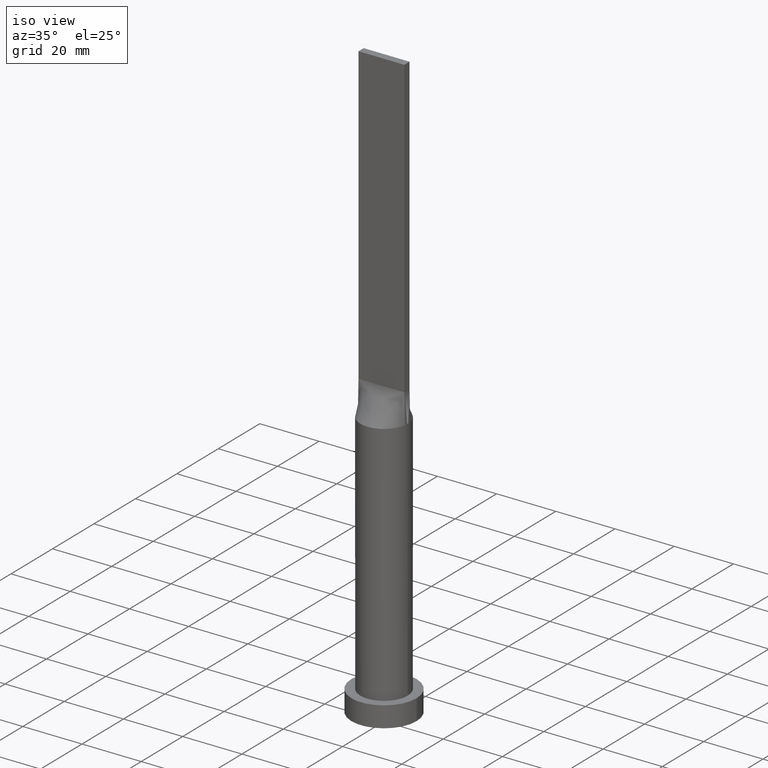
[diagram: clean part render]
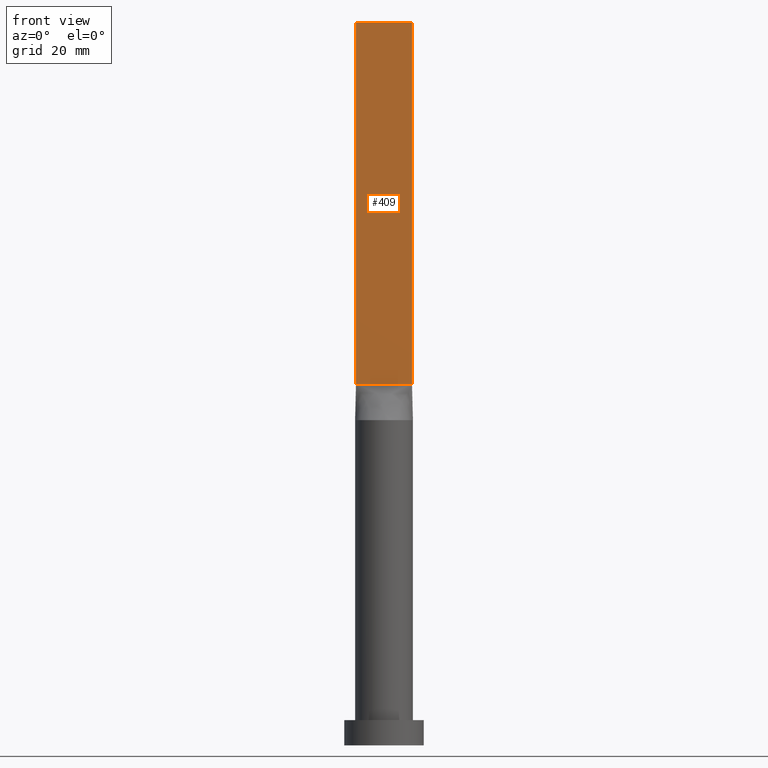
[diagram: tour spotlight — one face highlighted and labeled with its STEP entity id]
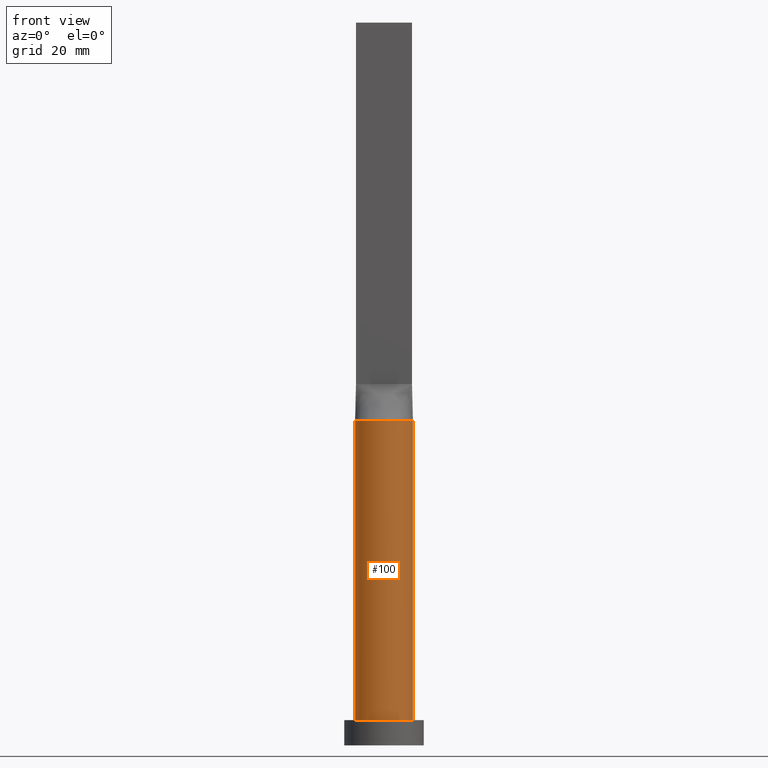
[diagram: tour spotlight — one face highlighted and labeled with its STEP entity id]
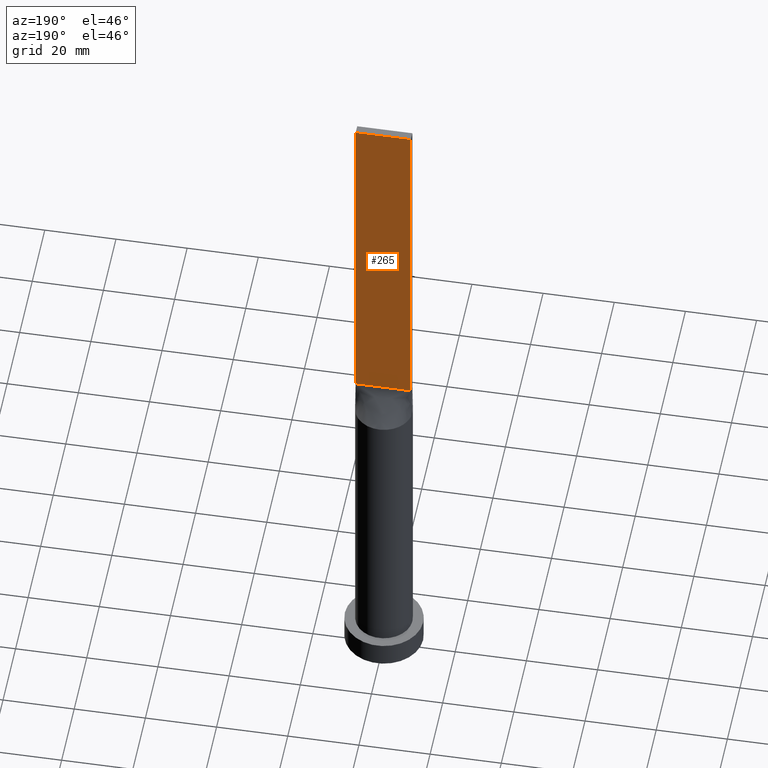
[diagram: tour spotlight — one face highlighted and labeled with its STEP entity id]
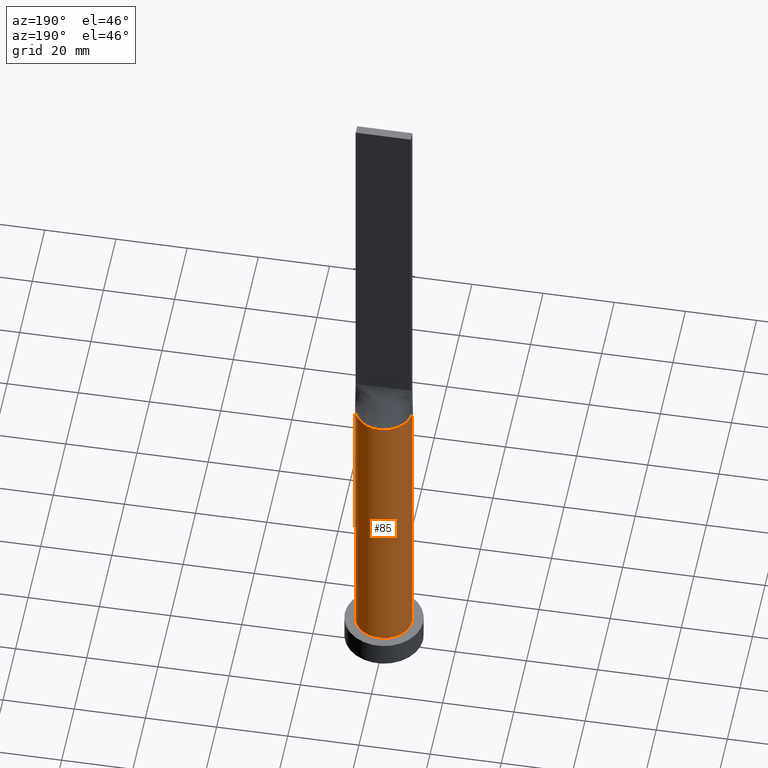
[diagram: tour spotlight — one face highlighted and labeled with its STEP entity id]
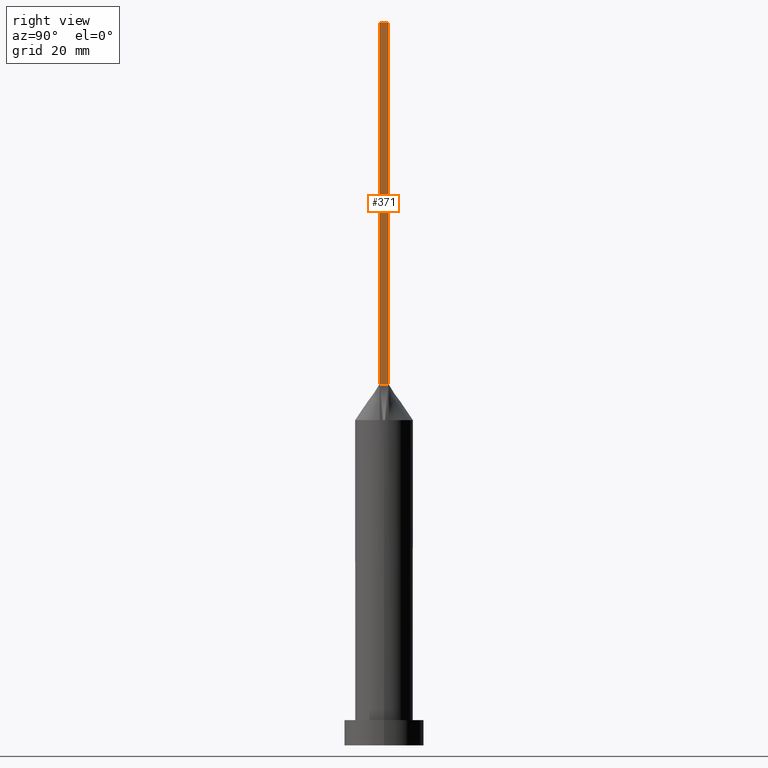
[diagram: tour spotlight — one face highlighted and labeled with its STEP entity id]
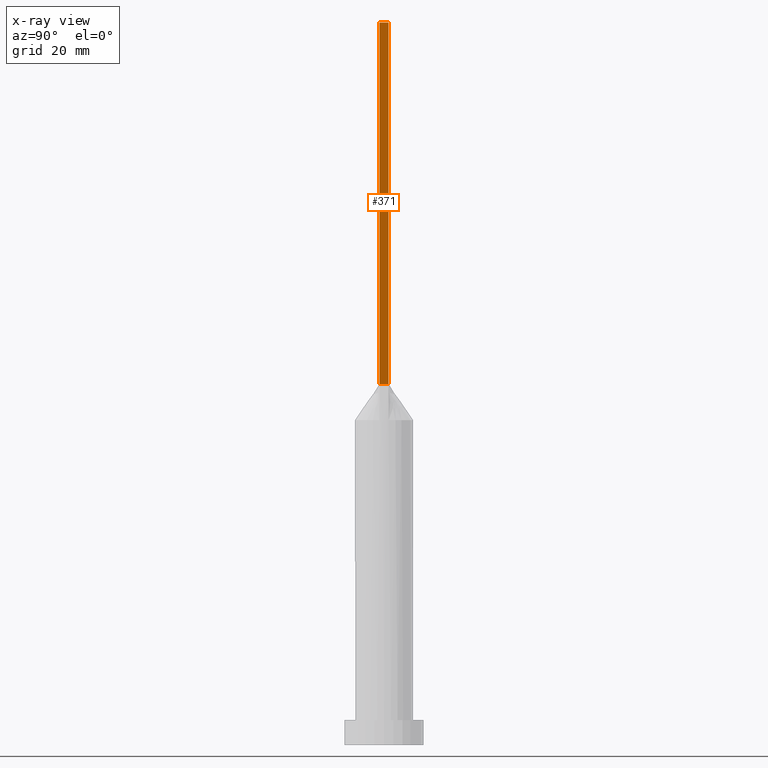
[diagram: x-ray of the same camera — body ghosted, this tour face saturated]
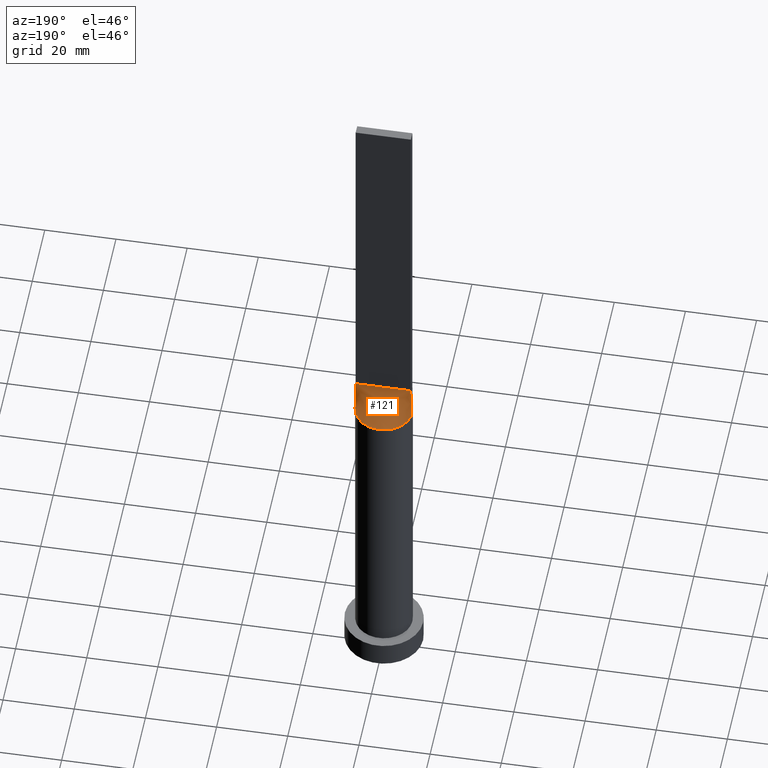
[diagram: tour spotlight — one face highlighted and labeled with its STEP entity id]
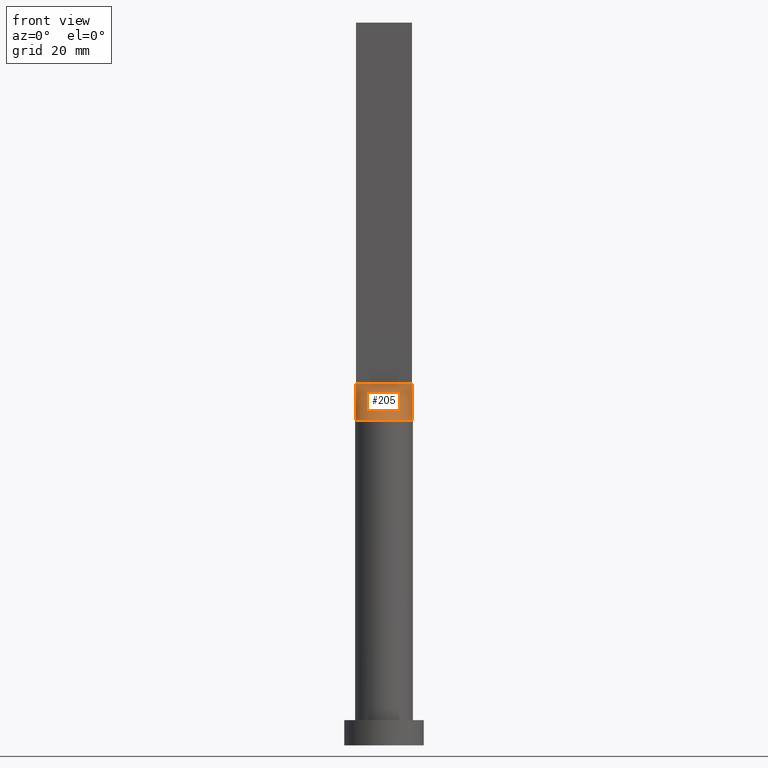
[diagram: tour spotlight — one face highlighted and labeled with its STEP entity id]
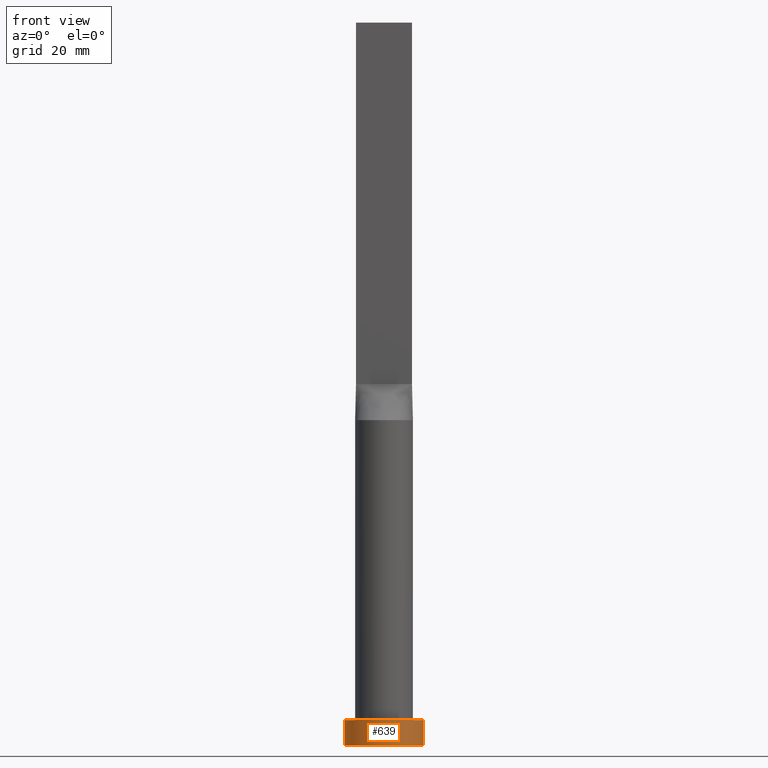
[diagram: tour spotlight — one face highlighted and labeled with its STEP entity id]
A machine part: a face-by-face anatomy tour. The part has 15 B-rep faces; the first image is the clean iso view, then the 8 largest visible faces are spotlighted one at a time (largest first), each with its STEP entity span.

Face 1 — front view, entity #409. In plain terms, the highlighted planar face has unit normal (0, 1, -0).
Definition (entity closure, byte-faithful):
#27 = DIRECTION ( 'NONE',  ( -0.000000000000000000, -0.000000000000000000, -1.000000000000000000 ) ) ;
#30 = CARTESIAN_POINT ( 'NONE',  ( -7.750000000000000000, -1.249999999999998890, 100.0000000000000000 ) ) ;
#34 = CARTESIAN_POINT ( 'NONE',  ( -7.750000000000000000, -1.249999999999998890, 200.0000000000000000 ) ) ;
#45 = DIRECTION ( 'NONE',  ( 1.000000000000000000, -5.595882180570345426E-17, 0.000000000000000000 ) ) ;
#56 = CARTESIAN_POINT ( 'NONE',  ( 7.750000000000000000, -1.249999999999999778, 200.0000000000000000 ) ) ;
#58 = ORIENTED_EDGE ( 'NONE', *, *, #362, .T. ) ;
#59 = DIRECTION ( 'NONE',  ( -0.000000000000000000, -0.000000000000000000, -1.000000000000000000 ) ) ;
#67 = AXIS2_PLACEMENT_3D ( 'NONE', #34, #579, #230 ) ;
#87 = VERTEX_POINT ( 'NONE', #289 ) ;
#119 = CARTESIAN_POINT ( 'NONE',  ( -7.750000000000000000, -1.249999999999998890, 200.0000000000000000 ) ) ;
#120 = CARTESIAN_POINT ( 'NONE',  ( 7.750000000000000000, -1.249999999999999778, 100.0000000000000000 ) ) ;
#130 = PLANE ( 'NONE',  #67 ) ;
#166 = VERTEX_POINT ( 'NONE', #120 ) ;
#179 = VECTOR ( 'NONE', #59, 1000.000000000000000 ) ;
#187 = ORIENTED_EDGE ( 'NONE', *, *, #341, .F. ) ;
#225 = ORIENTED_EDGE ( 'NONE', *, *, #469, .F. ) ;
#229 = ORIENTED_EDGE ( 'NONE', *, *, #590, .T. ) ;
#230 = DIRECTION ( 'NONE',  ( -1.000000000000000000, 5.595882180570345426E-17, 0.000000000000000000 ) ) ;
#234 = DIRECTION ( 'NONE',  ( 1.000000000000000000, -5.595882180570345426E-17, 0.000000000000000000 ) ) ;
#268 = EDGE_LOOP ( 'NONE', ( #229, #187, #225, #58 ) ) ;
#289 = CARTESIAN_POINT ( 'NONE',  ( -7.750000000000000000, -1.249999999999998890, 200.0000000000000000 ) ) ;
#291 = CARTESIAN_POINT ( 'NONE',  ( -7.750000000000000000, -1.249999999999998890, 100.0000000000000000 ) ) ;
#341 = EDGE_CURVE ( 'NONE', #374, #166, #512, .T. ) ;
#347 = VECTOR ( 'NONE', #234, 1000.000000000000000 ) ;
#362 = EDGE_CURVE ( 'NONE', #87, #483, #468, .T. ) ;
#372 = CARTESIAN_POINT ( 'NONE',  ( -7.750000000000000000, -1.249999999999998890, 200.0000000000000000 ) ) ;
#374 = VERTEX_POINT ( 'NONE', #428 ) ;
#409 = ADVANCED_FACE ( 'NONE', ( #481 ), #130, .F. ) ;
#428 = CARTESIAN_POINT ( 'NONE',  ( 7.750000000000000000, -1.249999999999999778, 200.0000000000000000 ) ) ;
#443 = VECTOR ( 'NONE', #27, 1000.000000000000000 ) ;
#468 = LINE ( 'NONE', #372, #443 ) ;
#469 = EDGE_CURVE ( 'NONE', #87, #374, #484, .T. ) ;
#481 = FACE_OUTER_BOUND ( 'NONE', #268, .T. ) ;
#483 = VERTEX_POINT ( 'NONE', #30 ) ;
#484 = LINE ( 'NONE', #119, #347 ) ;
#493 = VECTOR ( 'NONE', #45, 1000.000000000000000 ) ;
#512 = LINE ( 'NONE', #56, #179 ) ;
#579 = DIRECTION ( 'NONE',  ( 5.595882180570345426E-17, 1.000000000000000000, -0.000000000000000000 ) ) ;
#590 = EDGE_CURVE ( 'NONE', #483, #166, #635, .T. ) ;
#635 = LINE ( 'NONE', #291, #493 ) ;

Face 2 — front view, entity #100. In plain terms, the highlighted cylindrical surface (edge-blend (fillet) strip) has radius 8 mm, axis along (-0, -0, -1).
Definition (entity closure, byte-faithful):
#9 = VERTEX_POINT ( 'NONE', #170 ) ;
#20 = VECTOR ( 'NONE', #105, 1000.000000000000000 ) ;
#24 = ORIENTED_EDGE ( 'NONE', *, *, #575, .F. ) ;
#37 = ORIENTED_EDGE ( 'NONE', *, *, #633, .F. ) ;
#51 = EDGE_CURVE ( 'NONE', #195, #9, #570, .T. ) ;
#60 = EDGE_CURVE ( 'NONE', #134, #83, #65, .T. ) ;
#65 = CIRCLE ( 'NONE', #306, 8.000000000000000000 ) ;
#70 = AXIS2_PLACEMENT_3D ( 'NONE', #366, #114, #277 ) ;
#77 = EDGE_CURVE ( 'NONE', #295, #9, #241, .T. ) ;
#78 = AXIS2_PLACEMENT_3D ( 'NONE', #479, #581, #489 ) ;
#82 = DIRECTION ( 'NONE',  ( -0.000000000000000000, -0.000000000000000000, -1.000000000000000000 ) ) ;
#83 = VERTEX_POINT ( 'NONE', #583 ) ;
#86 = CARTESIAN_POINT ( 'NONE',  ( 0.000000000000000000, 0.000000000000000000, 90.00000000000001421 ) ) ;
#100 = ADVANCED_FACE ( 'NONE', ( #236 ), #292, .T. ) ;
#105 = DIRECTION ( 'NONE',  ( -0.000000000000000000, -0.000000000000000000, -1.000000000000000000 ) ) ;
#114 = DIRECTION ( 'NONE',  ( 0.000000000000000000, 0.000000000000000000, 1.000000000000000000 ) ) ;
#134 = VERTEX_POINT ( 'NONE', #611 ) ;
#138 = CARTESIAN_POINT ( 'NONE',  ( 8.000000000000000000, 9.797174393178825657E-16, 90.00000000000001421 ) ) ;
#144 = CARTESIAN_POINT ( 'NONE',  ( 0.000000000000000000, 0.000000000000000000, 90.00000000000001421 ) ) ;
#160 = CARTESIAN_POINT ( 'NONE',  ( 7.897952327758385849, -1.273863293446191536, 90.00000000000001421 ) ) ;
#170 = CARTESIAN_POINT ( 'NONE',  ( 8.000000000000000000, 9.797174393178825657E-16, 7.000000000000000000 ) ) ;
#186 = DIRECTION ( 'NONE',  ( 1.000000000000000000, 0.000000000000000000, 0.000000000000000000 ) ) ;
#190 = VECTOR ( 'NONE', #389, 1000.000000000000000 ) ;
#195 = VERTEX_POINT ( 'NONE', #339 ) ;
#208 = LINE ( 'NONE', #360, #20 ) ;
#213 = EDGE_LOOP ( 'NONE', ( #574, #24, #37, #337, #615, #370 ) ) ;
#222 = CARTESIAN_POINT ( 'NONE',  ( 7.999674421998661522, 1.953788361903730848E-15, 90.00000000000001421 ) ) ;
#236 = FACE_OUTER_BOUND ( 'NONE', #213, .T. ) ;
#241 = LINE ( 'NONE', #138, #190 ) ;
#271 = EDGE_CURVE ( 'NONE', #134, #195, #208, .T. ) ;
#277 = DIRECTION ( 'NONE',  ( 1.000000000000000000, 0.000000000000000000, 0.000000000000000000 ) ) ;
#292 = CYLINDRICAL_SURFACE ( 'NONE', #439, 8.000000000000000000 ) ;
#293 = DIRECTION ( 'NONE',  ( 1.000000000000000000, 1.776356839400250465E-15, 0.000000000000000000 ) ) ;
#295 = VERTEX_POINT ( 'NONE', #222 ) ;
#306 = AXIS2_PLACEMENT_3D ( 'NONE', #86, #396, #186 ) ;
#329 = VERTEX_POINT ( 'NONE', #160 ) ;
#337 = ORIENTED_EDGE ( 'NONE', *, *, #60, .F. ) ;
#339 = CARTESIAN_POINT ( 'NONE',  ( -8.000000000000000000, 0.000000000000000000, 7.000000000000000000 ) ) ;
#360 = CARTESIAN_POINT ( 'NONE',  ( -8.000000000000000000, 0.000000000000000000, 90.00000000000001421 ) ) ;
#366 = CARTESIAN_POINT ( 'NONE',  ( 0.000000000000000000, 0.000000000000000000, 90.00000000000001421 ) ) ;
#370 = ORIENTED_EDGE ( 'NONE', *, *, #51, .T. ) ;
#389 = DIRECTION ( 'NONE',  ( -0.000000000000000000, -0.000000000000000000, -1.000000000000000000 ) ) ;
#396 = DIRECTION ( 'NONE',  ( 0.000000000000000000, 0.000000000000000000, 1.000000000000000000 ) ) ;
#401 = CIRCLE ( 'NONE', #70, 8.000000000000000000 ) ;
#410 = AXIS2_PLACEMENT_3D ( 'NONE', #144, #442, #293 ) ;
#431 = CIRCLE ( 'NONE', #410, 8.000000000000000000 ) ;
#439 = AXIS2_PLACEMENT_3D ( 'NONE', #445, #82, #636 ) ;
#442 = DIRECTION ( 'NONE',  ( 0.000000000000000000, 0.000000000000000000, 1.000000000000000000 ) ) ;
#445 = CARTESIAN_POINT ( 'NONE',  ( 0.000000000000000000, 0.000000000000000000, 90.00000000000001421 ) ) ;
#479 = CARTESIAN_POINT ( 'NONE',  ( 0.000000000000000000, 0.000000000000000000, 7.000000000000000000 ) ) ;
#489 = DIRECTION ( 'NONE',  ( 1.000000000000000000, 0.000000000000000000, 0.000000000000000000 ) ) ;
#570 = CIRCLE ( 'NONE', #78, 8.000000000000000000 ) ;
#574 = ORIENTED_EDGE ( 'NONE', *, *, #77, .F. ) ;
#575 = EDGE_CURVE ( 'NONE', #329, #295, #431, .T. ) ;
#581 = DIRECTION ( 'NONE',  ( 0.000000000000000000, 0.000000000000000000, 1.000000000000000000 ) ) ;
#583 = CARTESIAN_POINT ( 'NONE',  ( -7.897940634034629426, -1.273861398824698732, 90.00000000000001421 ) ) ;
#611 = CARTESIAN_POINT ( 'NONE',  ( -7.999674421998661522, -1.996358676257538358E-15, 90.00000000000001421 ) ) ;
#615 = ORIENTED_EDGE ( 'NONE', *, *, #271, .T. ) ;
#633 = EDGE_CURVE ( 'NONE', #83, #329, #401, .T. ) ;
#636 = DIRECTION ( 'NONE',  ( -1.000000000000000000, 0.000000000000000000, 0.000000000000000000 ) ) ;

Face 3 — auxiliary view, entity #265. In plain terms, the highlighted planar face has unit normal (0, -1, 0).
Definition (entity closure, byte-faithful):
#7 = CARTESIAN_POINT ( 'NONE',  ( -7.750000000000000000, 1.250000000000000222, 100.0000000000000000 ) ) ;
#31 = VECTOR ( 'NONE', #527, 1000.000000000000000 ) ;
#38 = VECTOR ( 'NONE', #367, 1000.000000000000000 ) ;
#48 = ORIENTED_EDGE ( 'NONE', *, *, #510, .F. ) ;
#111 = FACE_OUTER_BOUND ( 'NONE', #403, .T. ) ;
#115 = LINE ( 'NONE', #7, #38 ) ;
#145 = ORIENTED_EDGE ( 'NONE', *, *, #613, .T. ) ;
#152 = CARTESIAN_POINT ( 'NONE',  ( 7.750000000000000000, 1.250000000000000222, 200.0000000000000000 ) ) ;
#156 = VECTOR ( 'NONE', #478, 1000.000000000000000 ) ;
#226 = EDGE_CURVE ( 'NONE', #416, #250, #115, .T. ) ;
#250 = VERTEX_POINT ( 'NONE', #595 ) ;
#265 = ADVANCED_FACE ( 'NONE', ( #111 ), #597, .F. ) ;
#282 = ORIENTED_EDGE ( 'NONE', *, *, #488, .F. ) ;
#307 = AXIS2_PLACEMENT_3D ( 'NONE', #152, #356, #556 ) ;
#312 = VERTEX_POINT ( 'NONE', #375 ) ;
#319 = CARTESIAN_POINT ( 'NONE',  ( 7.750000000000000000, 1.250000000000000222, 200.0000000000000000 ) ) ;
#350 = CARTESIAN_POINT ( 'NONE',  ( 7.750000000000000000, 1.250000000000000222, 200.0000000000000000 ) ) ;
#356 = DIRECTION ( 'NONE',  ( 0.000000000000000000, -1.000000000000000000, 0.000000000000000000 ) ) ;
#367 = DIRECTION ( 'NONE',  ( -1.000000000000000000, -0.000000000000000000, -0.000000000000000000 ) ) ;
#375 = CARTESIAN_POINT ( 'NONE',  ( 7.750000000000000000, 1.250000000000000222, 200.0000000000000000 ) ) ;
#379 = ORIENTED_EDGE ( 'NONE', *, *, #226, .T. ) ;
#403 = EDGE_LOOP ( 'NONE', ( #379, #48, #282, #145 ) ) ;
#404 = DIRECTION ( 'NONE',  ( -0.000000000000000000, -0.000000000000000000, -1.000000000000000000 ) ) ;
#416 = VERTEX_POINT ( 'NONE', #625 ) ;
#427 = LINE ( 'NONE', #319, #31 ) ;
#478 = DIRECTION ( 'NONE',  ( -0.000000000000000000, -0.000000000000000000, -1.000000000000000000 ) ) ;
#488 = EDGE_CURVE ( 'NONE', #312, #549, #427, .T. ) ;
#510 = EDGE_CURVE ( 'NONE', #549, #250, #621, .T. ) ;
#527 = DIRECTION ( 'NONE',  ( -1.000000000000000000, 0.000000000000000000, 0.000000000000000000 ) ) ;
#546 = CARTESIAN_POINT ( 'NONE',  ( -7.750000000000000000, 1.250000000000000222, 200.0000000000000000 ) ) ;
#549 = VERTEX_POINT ( 'NONE', #546 ) ;
#556 = DIRECTION ( 'NONE',  ( 0.000000000000000000, -0.000000000000000000, -1.000000000000000000 ) ) ;
#577 = CARTESIAN_POINT ( 'NONE',  ( -7.750000000000000000, 1.250000000000000222, 200.0000000000000000 ) ) ;
#585 = VECTOR ( 'NONE', #404, 1000.000000000000000 ) ;
#586 = LINE ( 'NONE', #350, #585 ) ;
#595 = CARTESIAN_POINT ( 'NONE',  ( -7.750000000000000000, 1.250000000000000222, 100.0000000000000000 ) ) ;
#597 = PLANE ( 'NONE',  #307 ) ;
#613 = EDGE_CURVE ( 'NONE', #312, #416, #586, .T. ) ;
#621 = LINE ( 'NONE', #577, #156 ) ;
#625 = CARTESIAN_POINT ( 'NONE',  ( 7.750000000000000000, 1.250000000000000222, 100.0000000000000000 ) ) ;

Face 4 — auxiliary view, entity #85. In plain terms, the highlighted cylindrical surface (edge-blend (fillet) strip) has radius 8 mm, axis along (-0, -0, -1).
Definition (entity closure, byte-faithful):
#1 = CARTESIAN_POINT ( 'NONE',  ( 7.597511974649646227, 2.632154125590748350, 89.99999999999998579 ) ) ;
#9 = VERTEX_POINT ( 'NONE', #170 ) ;
#13 = EDGE_LOOP ( 'NONE', ( #506, #97, #426, #122, #17, #562 ) ) ;
#17 = ORIENTED_EDGE ( 'NONE', *, *, #529, .F. ) ;
#20 = VECTOR ( 'NONE', #105, 1000.000000000000000 ) ;
#64 = DIRECTION ( 'NONE',  ( 0.000000000000000000, 0.000000000000000000, 1.000000000000000000 ) ) ;
#71 = CARTESIAN_POINT ( 'NONE',  ( 2.762781956618984847, 7.527418670504289366, 90.00000000000004263 ) ) ;
#74 = CARTESIAN_POINT ( 'NONE',  ( -2.232993174580875539, 7.702525839322460044, 90.00000000000001421 ) ) ;
#77 = EDGE_CURVE ( 'NONE', #295, #9, #241, .T. ) ;
#85 = ADVANCED_FACE ( 'NONE', ( #189 ), #89, .T. ) ;
#89 = CYLINDRICAL_SURFACE ( 'NONE', #99, 8.000000000000000000 ) ;
#94 = CARTESIAN_POINT ( 'NONE',  ( 7.897939137640443974, 1.273861156091724789, 90.00000000000001421 ) ) ;
#97 = ORIENTED_EDGE ( 'NONE', *, *, #77, .T. ) ;
#99 = AXIS2_PLACEMENT_3D ( 'NONE', #395, #344, #542 ) ;
#105 = DIRECTION ( 'NONE',  ( -0.000000000000000000, -0.000000000000000000, -1.000000000000000000 ) ) ;
#117 = CARTESIAN_POINT ( 'NONE',  ( -7.597511974649647115, 2.632154125590751903, 90.00000000000001421 ) ) ;
#122 = ORIENTED_EDGE ( 'NONE', *, *, #271, .F. ) ;
#129 = CARTESIAN_POINT ( 'NONE',  ( -4.217034177653714799, 6.817775467282660706, 90.00000000000002842 ) ) ;
#134 = VERTEX_POINT ( 'NONE', #611 ) ;
#135 = CARTESIAN_POINT ( 'NONE',  ( -6.389139692789916225, 4.834731051311460526, 90.00000000000002842 ) ) ;
#138 = CARTESIAN_POINT ( 'NONE',  ( 8.000000000000000000, 9.797174393178825657E-16, 90.00000000000001421 ) ) ;
#150 = CARTESIAN_POINT ( 'NONE',  ( 6.389139692789920666, 4.834731051311459638, 90.00000000000004263 ) ) ;
#153 = AXIS2_PLACEMENT_3D ( 'NONE', #321, #64, #270 ) ;
#157 = AXIS2_PLACEMENT_3D ( 'NONE', #535, #227, #436 ) ;
#162 = EDGE_CURVE ( 'NONE', #9, #195, #525, .T. ) ;
#170 = CARTESIAN_POINT ( 'NONE',  ( 8.000000000000000000, 9.797174393178825657E-16, 7.000000000000000000 ) ) ;
#174 = CARTESIAN_POINT ( 'NONE',  ( -7.793128424795161102, 1.923622864214273198, 90.00000000000001421 ) ) ;
#178 = CARTESIAN_POINT ( 'NONE',  ( 3.754841939107309567, 7.084924699190306541, 90.00000000000002842 ) ) ;
#183 = CARTESIAN_POINT ( 'NONE',  ( -6.100409024666552327, 5.197691498289451317, 90.00000000000001421 ) ) ;
#189 = FACE_OUTER_BOUND ( 'NONE', #13, .T. ) ;
#190 = VECTOR ( 'NONE', #389, 1000.000000000000000 ) ;
#193 = DIRECTION ( 'NONE',  ( 1.000000000000000000, 0.000000000000000000, 0.000000000000000000 ) ) ;
#195 = VERTEX_POINT ( 'NONE', #339 ) ;
#204 = VERTEX_POINT ( 'NONE', #384 ) ;
#208 = LINE ( 'NONE', #360, #20 ) ;
#222 = CARTESIAN_POINT ( 'NONE',  ( 7.999674421998661522, 1.953788361903730848E-15, 90.00000000000001421 ) ) ;
#227 = DIRECTION ( 'NONE',  ( 0.000000000000000000, 0.000000000000000000, 1.000000000000000000 ) ) ;
#233 = CARTESIAN_POINT ( 'NONE',  ( 0.5677556330368851434, 7.999999999999998224, 90.00000000000001421 ) ) ;
#241 = LINE ( 'NONE', #138, #190 ) ;
#243 = CIRCLE ( 'NONE', #157, 8.000000000000000000 ) ;
#251 = CARTESIAN_POINT ( 'NONE',  ( 7.088837466865212988, 3.729743859143727303, 89.99999999999998579 ) ) ;
#267 = CARTESIAN_POINT ( 'NONE',  ( -7.088837466865208548, 3.729743859143727747, 89.99999999999998579 ) ) ;
#270 = DIRECTION ( 'NONE',  ( 1.000000000000000000, 0.000000000000000000, 0.000000000000000000 ) ) ;
#271 = EDGE_CURVE ( 'NONE', #134, #195, #208, .T. ) ;
#279 = CARTESIAN_POINT ( 'NONE',  ( -3.754841939107308235, 7.084924699190308317, 90.00000000000004263 ) ) ;
#287 = CARTESIAN_POINT ( 'NONE',  ( 5.056714967162550423, 6.220536417275850383, 90.00000000000001421 ) ) ;
#295 = VERTEX_POINT ( 'NONE', #222 ) ;
#296 = CARTESIAN_POINT ( 'NONE',  ( 7.793128424795161990, 1.923622864214272088, 89.99999999999998579 ) ) ;
#321 = CARTESIAN_POINT ( 'NONE',  ( 0.000000000000000000, 0.000000000000000000, 7.000000000000000000 ) ) ;
#322 = CARTESIAN_POINT ( 'NONE',  ( -7.897950825069725234, 1.273863048877633020, 90.00000000000001421 ) ) ;
#324 = CIRCLE ( 'NONE', #558, 8.000000000000000000 ) ;
#330 = CARTESIAN_POINT ( 'NONE',  ( 2.232993174580878204, 7.702525839322459156, 90.00000000000002842 ) ) ;
#333 = CARTESIAN_POINT ( 'NONE',  ( -5.056714967162549534, 6.220536417275851271, 90.00000000000002842 ) ) ;
#339 = CARTESIAN_POINT ( 'NONE',  ( -8.000000000000000000, 0.000000000000000000, 7.000000000000000000 ) ) ;
#340 = CARTESIAN_POINT ( 'NONE',  ( 6.100409024666552327, 5.197691498289451317, 90.00000000000001421 ) ) ;
#344 = DIRECTION ( 'NONE',  ( -0.000000000000000000, -0.000000000000000000, -1.000000000000000000 ) ) ;
#360 = CARTESIAN_POINT ( 'NONE',  ( -8.000000000000000000, 0.000000000000000000, 90.00000000000001421 ) ) ;
#384 = CARTESIAN_POINT ( 'NONE',  ( -7.897950825069725234, 1.273863048877633020, 90.00000000000001421 ) ) ;
#389 = DIRECTION ( 'NONE',  ( -0.000000000000000000, -0.000000000000000000, -1.000000000000000000 ) ) ;
#395 = CARTESIAN_POINT ( 'NONE',  ( 0.000000000000000000, 0.000000000000000000, 90.00000000000001421 ) ) ;
#426 = ORIENTED_EDGE ( 'NONE', *, *, #162, .T. ) ;
#433 = CARTESIAN_POINT ( 'NONE',  ( -5.434261125067506804, 5.890653037160105576, 90.00000000000001421 ) ) ;
#436 = DIRECTION ( 'NONE',  ( 1.000000000000000000, 0.000000000000000000, 0.000000000000000000 ) ) ;
#448 = DIRECTION ( 'NONE',  ( 0.000000000000000000, 0.000000000000000000, 1.000000000000000000 ) ) ;
#480 = CARTESIAN_POINT ( 'NONE',  ( 1.135368687448996328, 7.938897956688654389, 90.00000000000001421 ) ) ;
#491 = CARTESIAN_POINT ( 'NONE',  ( 4.217034177653714799, 6.817775467282659818, 89.99999999999998579 ) ) ;
#506 = ORIENTED_EDGE ( 'NONE', *, *, #553, .F. ) ;
#522 = B_SPLINE_CURVE_WITH_KNOTS ( 'NONE', 3,
 ( #94, #296, #1, #251, #591, #150, #340, #538, #287, #491, #178, #71, #330, #480, #233, #573, #576, #74, #620, #279, #129, #333, #433, #183, #135, #607, #267, #117, #174, #322 ),
 .UNSPECIFIED., .F., .F.,
 ( 4, 2, 2, 2, 2, 2, 2, 2, 2, 2, 2, 2, 2, 2, 4 ),
 ( 0.000000000000000000, 0.1250000000000000000, 0.1875000000000000000, 0.2500000000000000000, 0.3125000000000000000, 0.3750000000000000000, 0.4375000000000000000, 0.5000000000000000000, 0.5625000000000000000, 0.6250000000000000000, 0.6875000000000000000, 0.7500000000000000000, 0.8125000000000000000, 0.8750000000000000000, 1.000000000000000000 ),
 .UNSPECIFIED. ) ;
#525 = CIRCLE ( 'NONE', #153, 8.000000000000000000 ) ;
#529 = EDGE_CURVE ( 'NONE', #204, #134, #243, .T. ) ;
#535 = CARTESIAN_POINT ( 'NONE',  ( 0.000000000000000000, 0.000000000000000000, 90.00000000000001421 ) ) ;
#537 = VERTEX_POINT ( 'NONE', #616 ) ;
#538 = CARTESIAN_POINT ( 'NONE',  ( 5.434261125067508580, 5.890653037160103800, 90.00000000000001421 ) ) ;
#542 = DIRECTION ( 'NONE',  ( -1.000000000000000000, 0.000000000000000000, 0.000000000000000000 ) ) ;
#553 = EDGE_CURVE ( 'NONE', #295, #537, #324, .T. ) ;
#558 = AXIS2_PLACEMENT_3D ( 'NONE', #584, #448, #193 ) ;
#562 = ORIENTED_EDGE ( 'NONE', *, *, #618, .F. ) ;
#573 = CARTESIAN_POINT ( 'NONE',  ( -0.5677556330368852544, 7.999999999999998224, 90.00000000000002842 ) ) ;
#576 = CARTESIAN_POINT ( 'NONE',  ( -1.135368687448994329, 7.938897956688654389, 90.00000000000001421 ) ) ;
#584 = CARTESIAN_POINT ( 'NONE',  ( 0.000000000000000000, 0.000000000000000000, 90.00000000000001421 ) ) ;
#591 = CARTESIAN_POINT ( 'NONE',  ( 6.883287261198673512, 4.100742229440780484, 90.00000000000004263 ) ) ;
#607 = CARTESIAN_POINT ( 'NONE',  ( -6.883287261198669960, 4.100742229440782260, 90.00000000000002842 ) ) ;
#611 = CARTESIAN_POINT ( 'NONE',  ( -7.999674421998661522, -1.996358676257538358E-15, 90.00000000000001421 ) ) ;
#616 = CARTESIAN_POINT ( 'NONE',  ( 7.897939137640443974, 1.273861156091724789, 90.00000000000001421 ) ) ;
#618 = EDGE_CURVE ( 'NONE', #537, #204, #522, .T. ) ;
#620 = CARTESIAN_POINT ( 'NONE',  ( -2.762781956618985291, 7.527418670504290255, 90.00000000000002842 ) ) ;

Face 5 — right view, entity #371. An x-ray twin of the same camera follows (body ghosted, this face saturated) — the face is partly hidden behind the body. In plain terms, the highlighted planar face has unit normal (-1, 0, 0).
Definition (entity closure, byte-faithful):
#4 = ORIENTED_EDGE ( 'NONE', *, *, #140, .T. ) ;
#11 = ORIENTED_EDGE ( 'NONE', *, *, #341, .T. ) ;
#56 = CARTESIAN_POINT ( 'NONE',  ( 7.750000000000000000, -1.249999999999999778, 200.0000000000000000 ) ) ;
#59 = DIRECTION ( 'NONE',  ( -0.000000000000000000, -0.000000000000000000, -1.000000000000000000 ) ) ;
#69 = DIRECTION ( 'NONE',  ( -0.000000000000000000, 1.000000000000000000, -0.000000000000000000 ) ) ;
#120 = CARTESIAN_POINT ( 'NONE',  ( 7.750000000000000000, -1.249999999999999778, 100.0000000000000000 ) ) ;
#124 = DIRECTION ( 'NONE',  ( -1.000000000000000000, 0.000000000000000000, 0.000000000000000000 ) ) ;
#128 = ORIENTED_EDGE ( 'NONE', *, *, #613, .F. ) ;
#140 = EDGE_CURVE ( 'NONE', #166, #416, #177, .T. ) ;
#166 = VERTEX_POINT ( 'NONE', #120 ) ;
#177 = LINE ( 'NONE', #373, #492 ) ;
#179 = VECTOR ( 'NONE', #59, 1000.000000000000000 ) ;
#184 = PLANE ( 'NONE',  #191 ) ;
#191 = AXIS2_PLACEMENT_3D ( 'NONE', #475, #124, #486 ) ;
#237 = LINE ( 'NONE', #386, #326 ) ;
#312 = VERTEX_POINT ( 'NONE', #375 ) ;
#326 = VECTOR ( 'NONE', #392, 1000.000000000000000 ) ;
#335 = FACE_OUTER_BOUND ( 'NONE', #471, .T. ) ;
#341 = EDGE_CURVE ( 'NONE', #374, #166, #512, .T. ) ;
#350 = CARTESIAN_POINT ( 'NONE',  ( 7.750000000000000000, 1.250000000000000222, 200.0000000000000000 ) ) ;
#371 = ADVANCED_FACE ( 'NONE', ( #335 ), #184, .F. ) ;
#373 = CARTESIAN_POINT ( 'NONE',  ( 7.750000000000000000, 1.250000000000000222, 100.0000000000000000 ) ) ;
#374 = VERTEX_POINT ( 'NONE', #428 ) ;
#375 = CARTESIAN_POINT ( 'NONE',  ( 7.750000000000000000, 1.250000000000000222, 200.0000000000000000 ) ) ;
#386 = CARTESIAN_POINT ( 'NONE',  ( 7.750000000000000000, -1.249999999999999778, 200.0000000000000000 ) ) ;
#392 = DIRECTION ( 'NONE',  ( 0.000000000000000000, 1.000000000000000000, 0.000000000000000000 ) ) ;
#404 = DIRECTION ( 'NONE',  ( -0.000000000000000000, -0.000000000000000000, -1.000000000000000000 ) ) ;
#416 = VERTEX_POINT ( 'NONE', #625 ) ;
#428 = CARTESIAN_POINT ( 'NONE',  ( 7.750000000000000000, -1.249999999999999778, 200.0000000000000000 ) ) ;
#457 = EDGE_CURVE ( 'NONE', #374, #312, #237, .T. ) ;
#471 = EDGE_LOOP ( 'NONE', ( #4, #128, #623, #11 ) ) ;
#475 = CARTESIAN_POINT ( 'NONE',  ( 7.750000000000000000, -1.249999999999999778, 200.0000000000000000 ) ) ;
#486 = DIRECTION ( 'NONE',  ( 0.000000000000000000, 0.000000000000000000, 1.000000000000000000 ) ) ;
#492 = VECTOR ( 'NONE', #69, 1000.000000000000000 ) ;
#512 = LINE ( 'NONE', #56, #179 ) ;
#585 = VECTOR ( 'NONE', #404, 1000.000000000000000 ) ;
#586 = LINE ( 'NONE', #350, #585 ) ;
#613 = EDGE_CURVE ( 'NONE', #312, #416, #586, .T. ) ;
#623 = ORIENTED_EDGE ( 'NONE', *, *, #457, .F. ) ;
#625 = CARTESIAN_POINT ( 'NONE',  ( 7.750000000000000000, 1.250000000000000222, 100.0000000000000000 ) ) ;

Face 6 — auxiliary view, entity #121. In plain terms, the highlighted face is a freeform B-spline surface patch.
Definition (entity closure, byte-faithful):
#1 = CARTESIAN_POINT ( 'NONE',  ( 7.597511974649646227, 2.632154125590748350, 89.99999999999998579 ) ) ;
#3 = CARTESIAN_POINT ( 'NONE',  ( -0.3229166666666729579, 1.250000000000000444, 100.0000000000000000 ) ) ;
#6 = CARTESIAN_POINT ( 'NONE',  ( -2.232993174580875539, 7.702525839322460044, 90.00000000000001421 ) ) ;
#7 = CARTESIAN_POINT ( 'NONE',  ( -7.750000000000000000, 1.250000000000000222, 100.0000000000000000 ) ) ;
#10 = CARTESIAN_POINT ( 'NONE',  ( 2.260416666666660745, 1.250000000000000222, 100.0000000000000000 ) ) ;
#16 = CARTESIAN_POINT ( 'NONE',  ( -6.883287261198669960, 4.100742229440782260, 90.00000000000002842 ) ) ;
#38 = VECTOR ( 'NONE', #367, 1000.000000000000000 ) ;
#43 = FACE_OUTER_BOUND ( 'NONE', #390, .T. ) ;
#44 = ORIENTED_EDGE ( 'NONE', *, *, #226, .F. ) ;
#47 = CARTESIAN_POINT ( 'NONE',  ( 1.291666666666660523, 1.250000000000000222, 100.0000000000000000 ) ) ;
#49 = CARTESIAN_POINT ( 'NONE',  ( -1.135368687448994329, 7.938897956688654389, 90.00000000000001421 ) ) ;
#71 = CARTESIAN_POINT ( 'NONE',  ( 2.762781956618984847, 7.527418670504289366, 90.00000000000004263 ) ) ;
#74 = CARTESIAN_POINT ( 'NONE',  ( -2.232993174580875539, 7.702525839322460044, 90.00000000000001421 ) ) ;
#92 = CARTESIAN_POINT ( 'NONE',  ( -3.229166666666672736, 1.250000000000000222, 100.0000000000000284 ) ) ;
#94 = CARTESIAN_POINT ( 'NONE',  ( 7.897939137640443974, 1.273861156091724789, 90.00000000000001421 ) ) ;
#96 = CARTESIAN_POINT ( 'NONE',  ( 4.217034177653714799, 6.817775467282659818, 89.99999999999998579 ) ) ;
#104 = CARTESIAN_POINT ( 'NONE',  ( -3.754841939107308235, 7.084924699190308317, 90.00000000000004263 ) ) ;
#107 = CARTESIAN_POINT ( 'NONE',  ( 6.883287261198673512, 4.100742229440780484, 90.00000000000004263 ) ) ;
#109 = CARTESIAN_POINT ( 'NONE',  ( -7.793128424795161102, 1.923622864214273198, 90.00000000000001421 ) ) ;
#115 = LINE ( 'NONE', #7, #38 ) ;
#116 = CARTESIAN_POINT ( 'NONE',  ( -7.104166666666669627, 1.250000000000000222, 100.0000000000000000 ) ) ;
#117 = CARTESIAN_POINT ( 'NONE',  ( -7.597511974649647115, 2.632154125590751903, 90.00000000000001421 ) ) ;
#121 = ADVANCED_FACE ( 'NONE', ( #43 ), #158, .T. ) ;
#127 = CARTESIAN_POINT ( 'NONE',  ( -7.088837466865208548, 3.729743859143727747, 89.99999999999998579 ) ) ;
#129 = CARTESIAN_POINT ( 'NONE',  ( -4.217034177653714799, 6.817775467282660706, 90.00000000000002842 ) ) ;
#135 = CARTESIAN_POINT ( 'NONE',  ( -6.389139692789916225, 4.834731051311460526, 90.00000000000002842 ) ) ;
#149 = CARTESIAN_POINT ( 'NONE',  ( 4.520833333333327708, 1.250000000000000222, 100.0000000000000000 ) ) ;
#150 = CARTESIAN_POINT ( 'NONE',  ( 6.389139692789920666, 4.834731051311459638, 90.00000000000004263 ) ) ;
#155 = CARTESIAN_POINT ( 'NONE',  ( 0.3229166666666602459, 1.250000000000000444, 100.0000000000000000 ) ) ;
#158 = B_SPLINE_SURFACE_WITH_KNOTS ( 'NONE', 3, 1, ( 
 ( #294, #406 ),
 ( #466, #358 ),
 ( #249, #209 ),
 ( #260, #589 ),
 ( #107, #560 ),
 ( #300, #149 ),
 ( #304, #402 ),
 ( #352, #411 ),
 ( #640, #552 ),
 ( #96, #298 ),
 ( #496, #10 ),
 ( #499, #503 ),
 ( #600, #47 ),
 ( #159, #603 ),
 ( #255, #155 ),
 ( #456, #3 ),
 ( #49, #559 ),
 ( #6, #508 ),
 ( #207, #596 ),
 ( #104, #302 ),
 ( #505, #212 ),
 ( #161, #92 ),
 ( #516, #473 ),
 ( #569, #429 ),
 ( #365, #572 ),
 ( #16, #169 ),
 ( #127, #561 ),
 ( #276, #218 ),
 ( #109, #116 ),
 ( #515, #419 ) ),
 .UNSPECIFIED., .F., .F., .F.,
 ( 4, 2, 2, 2, 2, 2, 2, 2, 2, 2, 2, 2, 2, 2, 4 ),
 ( 2, 2 ),
 ( 0.000000000000000000, 0.1250000000000000000, 0.1875000000000000000, 0.2500000000000000000, 0.3125000000000000000, 0.3750000000000000000, 0.4375000000000000000, 0.5000000000000000000, 0.5625000000000000000, 0.6250000000000000000, 0.6875000000000000000, 0.7500000000000000000, 0.8125000000000000000, 0.8750000000000000000, 1.000000000000000000 ),
 ( 0.000000000000000000, 1.000000000000000000 ),
 .UNSPECIFIED. ) ;
#159 = CARTESIAN_POINT ( 'NONE',  ( 1.135368687448996328, 7.938897956688654389, 90.00000000000001421 ) ) ;
#161 = CARTESIAN_POINT ( 'NONE',  ( -5.056714967162549534, 6.220536417275851271, 90.00000000000002842 ) ) ;
#164 = DIRECTION ( 'NONE',  ( 0.01479123618026851987, -0.002385683254881837845, 0.9998877576246579801 ) ) ;
#169 = CARTESIAN_POINT ( 'NONE',  ( -5.166666666666671404, 1.250000000000000222, 100.0000000000000284 ) ) ;
#174 = CARTESIAN_POINT ( 'NONE',  ( -7.793128424795161102, 1.923622864214273198, 90.00000000000001421 ) ) ;
#178 = CARTESIAN_POINT ( 'NONE',  ( 3.754841939107309567, 7.084924699190306541, 90.00000000000002842 ) ) ;
#183 = CARTESIAN_POINT ( 'NONE',  ( -6.100409024666552327, 5.197691498289451317, 90.00000000000001421 ) ) ;
#196 = LINE ( 'NONE', #399, #513 ) ;
#204 = VERTEX_POINT ( 'NONE', #384 ) ;
#207 = CARTESIAN_POINT ( 'NONE',  ( -2.762781956618985291, 7.527418670504290255, 90.00000000000002842 ) ) ;
#209 = CARTESIAN_POINT ( 'NONE',  ( 6.458333333333331261, 1.250000000000000222, 100.0000000000000000 ) ) ;
#212 = CARTESIAN_POINT ( 'NONE',  ( -2.583333333333339255, 1.250000000000000222, 100.0000000000000284 ) ) ;
#218 = CARTESIAN_POINT ( 'NONE',  ( -6.458333333333336590, 1.250000000000000222, 100.0000000000000284 ) ) ;
#226 = EDGE_CURVE ( 'NONE', #416, #250, #115, .T. ) ;
#233 = CARTESIAN_POINT ( 'NONE',  ( 0.5677556330368851434, 7.999999999999998224, 90.00000000000001421 ) ) ;
#249 = CARTESIAN_POINT ( 'NONE',  ( 7.597511974649646227, 2.632154125590748350, 89.99999999999998579 ) ) ;
#250 = VERTEX_POINT ( 'NONE', #595 ) ;
#251 = CARTESIAN_POINT ( 'NONE',  ( 7.088837466865212988, 3.729743859143727303, 89.99999999999998579 ) ) ;
#254 = EDGE_CURVE ( 'NONE', #204, #250, #417, .T. ) ;
#255 = CARTESIAN_POINT ( 'NONE',  ( 0.5677556330368851434, 7.999999999999998224, 90.00000000000001421 ) ) ;
#260 = CARTESIAN_POINT ( 'NONE',  ( 7.088837466865212988, 3.729743859143727303, 89.99999999999998579 ) ) ;
#261 = ORIENTED_EDGE ( 'NONE', *, *, #618, .T. ) ;
#267 = CARTESIAN_POINT ( 'NONE',  ( -7.088837466865208548, 3.729743859143727747, 89.99999999999998579 ) ) ;
#276 = CARTESIAN_POINT ( 'NONE',  ( -7.597511974649647115, 2.632154125590751903, 90.00000000000001421 ) ) ;
#279 = CARTESIAN_POINT ( 'NONE',  ( -3.754841939107308235, 7.084924699190308317, 90.00000000000004263 ) ) ;
#287 = CARTESIAN_POINT ( 'NONE',  ( 5.056714967162550423, 6.220536417275850383, 90.00000000000001421 ) ) ;
#294 = CARTESIAN_POINT ( 'NONE',  ( 7.897928965701177084, 1.273859510596963451, 90.00000000000001421 ) ) ;
#296 = CARTESIAN_POINT ( 'NONE',  ( 7.793128424795161990, 1.923622864214272088, 89.99999999999998579 ) ) ;
#298 = CARTESIAN_POINT ( 'NONE',  ( 2.583333333333327264, 1.250000000000000222, 100.0000000000000000 ) ) ;
#300 = CARTESIAN_POINT ( 'NONE',  ( 6.389139692789920666, 4.834731051311459638, 90.00000000000004263 ) ) ;
#302 = CARTESIAN_POINT ( 'NONE',  ( -2.260416666666672736, 1.250000000000000222, 100.0000000000000142 ) ) ;
#304 = CARTESIAN_POINT ( 'NONE',  ( 6.100409024666552327, 5.197691498289451317, 90.00000000000001421 ) ) ;
#322 = CARTESIAN_POINT ( 'NONE',  ( -7.897950825069725234, 1.273863048877633020, 90.00000000000001421 ) ) ;
#330 = CARTESIAN_POINT ( 'NONE',  ( 2.232993174580878204, 7.702525839322459156, 90.00000000000002842 ) ) ;
#333 = CARTESIAN_POINT ( 'NONE',  ( -5.056714967162549534, 6.220536417275851271, 90.00000000000002842 ) ) ;
#340 = CARTESIAN_POINT ( 'NONE',  ( 6.100409024666552327, 5.197691498289451317, 90.00000000000001421 ) ) ;
#342 = ORIENTED_EDGE ( 'NONE', *, *, #254, .T. ) ;
#352 = CARTESIAN_POINT ( 'NONE',  ( 5.434261125067508580, 5.890653037160103800, 90.00000000000001421 ) ) ;
#358 = CARTESIAN_POINT ( 'NONE',  ( 7.104166666666666075, 1.250000000000000222, 100.0000000000000000 ) ) ;
#365 = CARTESIAN_POINT ( 'NONE',  ( -6.389139692789916225, 4.834731051311460526, 90.00000000000002842 ) ) ;
#367 = DIRECTION ( 'NONE',  ( -1.000000000000000000, -0.000000000000000000, -0.000000000000000000 ) ) ;
#384 = CARTESIAN_POINT ( 'NONE',  ( -7.897950825069725234, 1.273863048877633020, 90.00000000000001421 ) ) ;
#390 = EDGE_LOOP ( 'NONE', ( #261, #342, #44, #398 ) ) ;
#398 = ORIENTED_EDGE ( 'NONE', *, *, #605, .F. ) ;
#399 = CARTESIAN_POINT ( 'NONE',  ( 7.823964482850588986, 1.261929755298481393, 95.00000000000000000 ) ) ;
#402 = CARTESIAN_POINT ( 'NONE',  ( 4.197916666666661634, 1.250000000000000222, 100.0000000000000142 ) ) ;
#406 = CARTESIAN_POINT ( 'NONE',  ( 7.750000000000000000, 1.250000000000000222, 100.0000000000000000 ) ) ;
#411 = CARTESIAN_POINT ( 'NONE',  ( 3.552083333333327708, 1.250000000000000222, 100.0000000000000142 ) ) ;
#416 = VERTEX_POINT ( 'NONE', #625 ) ;
#417 = LINE ( 'NONE', #462, #555 ) ;
#419 = CARTESIAN_POINT ( 'NONE',  ( -7.750000000000000000, 1.250000000000000222, 100.0000000000000000 ) ) ;
#429 = CARTESIAN_POINT ( 'NONE',  ( -4.197916666666672292, 1.250000000000000222, 100.0000000000000284 ) ) ;
#433 = CARTESIAN_POINT ( 'NONE',  ( -5.434261125067506804, 5.890653037160105576, 90.00000000000001421 ) ) ;
#456 = CARTESIAN_POINT ( 'NONE',  ( -0.5677556330368852544, 7.999999999999998224, 90.00000000000002842 ) ) ;
#462 = CARTESIAN_POINT ( 'NONE',  ( -7.823964482850588986, 1.261929755298481393, 95.00000000000000000 ) ) ;
#466 = CARTESIAN_POINT ( 'NONE',  ( 7.793128424795161990, 1.923622864214272088, 89.99999999999998579 ) ) ;
#473 = CARTESIAN_POINT ( 'NONE',  ( -3.552083333333339255, 1.250000000000000222, 100.0000000000000284 ) ) ;
#480 = CARTESIAN_POINT ( 'NONE',  ( 1.135368687448996328, 7.938897956688654389, 90.00000000000001421 ) ) ;
#491 = CARTESIAN_POINT ( 'NONE',  ( 4.217034177653714799, 6.817775467282659818, 89.99999999999998579 ) ) ;
#496 = CARTESIAN_POINT ( 'NONE',  ( 3.754841939107309567, 7.084924699190306541, 90.00000000000002842 ) ) ;
#499 = CARTESIAN_POINT ( 'NONE',  ( 2.762781956618984847, 7.527418670504289366, 90.00000000000004263 ) ) ;
#503 = CARTESIAN_POINT ( 'NONE',  ( 1.614583333333327264, 1.250000000000000222, 100.0000000000000000 ) ) ;
#505 = CARTESIAN_POINT ( 'NONE',  ( -4.217034177653714799, 6.817775467282660706, 90.00000000000002842 ) ) ;
#508 = CARTESIAN_POINT ( 'NONE',  ( -1.291666666666672736, 1.250000000000000222, 100.0000000000000000 ) ) ;
#513 = VECTOR ( 'NONE', #551, 1000.000000000000227 ) ;
#515 = CARTESIAN_POINT ( 'NONE',  ( -7.897928965701177084, 1.273859510596962563, 90.00000000000001421 ) ) ;
#516 = CARTESIAN_POINT ( 'NONE',  ( -5.434261125067506804, 5.890653037160105576, 90.00000000000001421 ) ) ;
#522 = B_SPLINE_CURVE_WITH_KNOTS ( 'NONE', 3,
 ( #94, #296, #1, #251, #591, #150, #340, #538, #287, #491, #178, #71, #330, #480, #233, #573, #576, #74, #620, #279, #129, #333, #433, #183, #135, #607, #267, #117, #174, #322 ),
 .UNSPECIFIED., .F., .F.,
 ( 4, 2, 2, 2, 2, 2, 2, 2, 2, 2, 2, 2, 2, 2, 4 ),
 ( 0.000000000000000000, 0.1250000000000000000, 0.1875000000000000000, 0.2500000000000000000, 0.3125000000000000000, 0.3750000000000000000, 0.4375000000000000000, 0.5000000000000000000, 0.5625000000000000000, 0.6250000000000000000, 0.6875000000000000000, 0.7500000000000000000, 0.8125000000000000000, 0.8750000000000000000, 1.000000000000000000 ),
 .UNSPECIFIED. ) ;
#537 = VERTEX_POINT ( 'NONE', #616 ) ;
#538 = CARTESIAN_POINT ( 'NONE',  ( 5.434261125067508580, 5.890653037160103800, 90.00000000000001421 ) ) ;
#551 = DIRECTION ( 'NONE',  ( -0.01479123618026851987, -0.002385683254881881647, 0.9998877576246579801 ) ) ;
#552 = CARTESIAN_POINT ( 'NONE',  ( 3.229166666666661190, 1.250000000000000222, 100.0000000000000000 ) ) ;
#555 = VECTOR ( 'NONE', #164, 1000.000000000000227 ) ;
#559 = CARTESIAN_POINT ( 'NONE',  ( -0.6458333333333395876, 1.250000000000000222, 100.0000000000000000 ) ) ;
#560 = CARTESIAN_POINT ( 'NONE',  ( 5.166666666666662522, 1.250000000000000222, 100.0000000000000000 ) ) ;
#561 = CARTESIAN_POINT ( 'NONE',  ( -5.489583333333337478, 1.250000000000000222, 100.0000000000000284 ) ) ;
#569 = CARTESIAN_POINT ( 'NONE',  ( -6.100409024666552327, 5.197691498289451317, 90.00000000000001421 ) ) ;
#572 = CARTESIAN_POINT ( 'NONE',  ( -4.520833333333338366, 1.250000000000000222, 100.0000000000000284 ) ) ;
#573 = CARTESIAN_POINT ( 'NONE',  ( -0.5677556330368852544, 7.999999999999998224, 90.00000000000002842 ) ) ;
#576 = CARTESIAN_POINT ( 'NONE',  ( -1.135368687448994329, 7.938897956688654389, 90.00000000000001421 ) ) ;
#589 = CARTESIAN_POINT ( 'NONE',  ( 5.489583333333329485, 1.250000000000000222, 100.0000000000000000 ) ) ;
#591 = CARTESIAN_POINT ( 'NONE',  ( 6.883287261198673512, 4.100742229440780484, 90.00000000000004263 ) ) ;
#595 = CARTESIAN_POINT ( 'NONE',  ( -7.750000000000000000, 1.250000000000000222, 100.0000000000000000 ) ) ;
#596 = CARTESIAN_POINT ( 'NONE',  ( -1.614583333333339477, 1.250000000000000222, 100.0000000000000142 ) ) ;
#600 = CARTESIAN_POINT ( 'NONE',  ( 2.232993174580878204, 7.702525839322459156, 90.00000000000002842 ) ) ;
#603 = CARTESIAN_POINT ( 'NONE',  ( 0.6458333333333270421, 1.250000000000000222, 100.0000000000000000 ) ) ;
#605 = EDGE_CURVE ( 'NONE', #537, #416, #196, .T. ) ;
#607 = CARTESIAN_POINT ( 'NONE',  ( -6.883287261198669960, 4.100742229440782260, 90.00000000000002842 ) ) ;
#616 = CARTESIAN_POINT ( 'NONE',  ( 7.897939137640443974, 1.273861156091724789, 90.00000000000001421 ) ) ;
#618 = EDGE_CURVE ( 'NONE', #537, #204, #522, .T. ) ;
#620 = CARTESIAN_POINT ( 'NONE',  ( -2.762781956618985291, 7.527418670504290255, 90.00000000000002842 ) ) ;
#625 = CARTESIAN_POINT ( 'NONE',  ( 7.750000000000000000, 1.250000000000000222, 100.0000000000000000 ) ) ;
#640 = CARTESIAN_POINT ( 'NONE',  ( 5.056714967162550423, 6.220536417275850383, 90.00000000000001421 ) ) ;

Face 7 — front view, entity #205. In plain terms, the highlighted face is a freeform B-spline surface patch.
Definition (entity closure, byte-faithful):
#14 = CARTESIAN_POINT ( 'NONE',  ( 6.389139692789917113, -4.834731051311460526, 90.00000000000002842 ) ) ;
#30 = CARTESIAN_POINT ( 'NONE',  ( -7.750000000000000000, -1.249999999999998890, 100.0000000000000000 ) ) ;
#32 = CARTESIAN_POINT ( 'NONE',  ( -3.552083333333333481, -1.249999999999998890, 100.0000000000000142 ) ) ;
#42 = CARTESIAN_POINT ( 'NONE',  ( -0.5677556330368861426, -7.999999999999998224, 90.00000000000001421 ) ) ;
#45 = DIRECTION ( 'NONE',  ( 1.000000000000000000, -5.595882180570345426E-17, 0.000000000000000000 ) ) ;
#46 = CARTESIAN_POINT ( 'NONE',  ( -7.104166666666666963, -1.249999999999998890, 100.0000000000000000 ) ) ;
#55 = CARTESIAN_POINT ( 'NONE',  ( 7.750000000000000000, -1.249999999999999778, 100.0000000000000000 ) ) ;
#62 = ORIENTED_EDGE ( 'NONE', *, *, #176, .T. ) ;
#70 = AXIS2_PLACEMENT_3D ( 'NONE', #366, #114, #277 ) ;
#76 = CARTESIAN_POINT ( 'NONE',  ( -7.897928965701177084, -1.273859510596962119, 90.00000000000001421 ) ) ;
#81 = CARTESIAN_POINT ( 'NONE',  ( -7.750000000000000000, -1.249999999999998890, 100.0000000000000000 ) ) ;
#83 = VERTEX_POINT ( 'NONE', #583 ) ;
#84 = CARTESIAN_POINT ( 'NONE',  ( -1.614583333333333259, -1.249999999999999112, 100.0000000000000000 ) ) ;
#95 = CARTESIAN_POINT ( 'NONE',  ( 1.614583333333333259, -1.249999999999999334, 100.0000000000000142 ) ) ;
#98 = CARTESIAN_POINT ( 'NONE',  ( -4.197916666666666963, -1.249999999999998890, 100.0000000000000142 ) ) ;
#102 = ORIENTED_EDGE ( 'NONE', *, *, #633, .T. ) ;
#108 = CARTESIAN_POINT ( 'NONE',  ( 5.489583333333335702, -1.249999999999999778, 100.0000000000000284 ) ) ;
#114 = DIRECTION ( 'NONE',  ( 0.000000000000000000, 0.000000000000000000, 1.000000000000000000 ) ) ;
#118 = LINE ( 'NONE', #566, #220 ) ;
#120 = CARTESIAN_POINT ( 'NONE',  ( 7.750000000000000000, -1.249999999999999778, 100.0000000000000000 ) ) ;
#133 = LINE ( 'NONE', #638, #320 ) ;
#137 = CARTESIAN_POINT ( 'NONE',  ( 0.5677556330368840332, -7.999999999999998224, 90.00000000000002842 ) ) ;
#142 = CARTESIAN_POINT ( 'NONE',  ( -2.232993174580879092, -7.702525839322459156, 90.00000000000002842 ) ) ;
#148 = CARTESIAN_POINT ( 'NONE',  ( 3.754841939107309123, -7.084924699190308317, 90.00000000000004263 ) ) ;
#160 = CARTESIAN_POINT ( 'NONE',  ( 7.897952327758385849, -1.273863293446191536, 90.00000000000001421 ) ) ;
#166 = VERTEX_POINT ( 'NONE', #120 ) ;
#168 = CARTESIAN_POINT ( 'NONE',  ( 6.458333333333334814, -1.249999999999999778, 100.0000000000000284 ) ) ;
#176 = EDGE_CURVE ( 'NONE', #483, #83, #133, .T. ) ;
#181 = CARTESIAN_POINT ( 'NONE',  ( -0.3229166666666662966, -1.249999999999999112, 100.0000000000000000 ) ) ;
#185 = CARTESIAN_POINT ( 'NONE',  ( -2.762781956618986623, -7.527418670504289366, 90.00000000000004263 ) ) ;
#197 = CARTESIAN_POINT ( 'NONE',  ( -7.793128424795161990, -1.923622864214270978, 89.99999999999998579 ) ) ;
#203 = FACE_OUTER_BOUND ( 'NONE', #353, .T. ) ;
#205 = ADVANCED_FACE ( 'NONE', ( #203 ), #316, .T. ) ;
#210 = CARTESIAN_POINT ( 'NONE',  ( 3.229166666666666519, -1.249999999999999778, 100.0000000000000284 ) ) ;
#220 = VECTOR ( 'NONE', #351, 1000.000000000000227 ) ;
#238 = CARTESIAN_POINT ( 'NONE',  ( -5.489583333333332149, -1.249999999999998890, 100.0000000000000000 ) ) ;
#248 = CARTESIAN_POINT ( 'NONE',  ( 1.135368687448994107, -7.938897956688654389, 90.00000000000001421 ) ) ;
#252 = CARTESIAN_POINT ( 'NONE',  ( -7.597511974649646227, -2.632154125590747906, 89.99999999999998579 ) ) ;
#257 = CARTESIAN_POINT ( 'NONE',  ( 7.597511974649644451, -2.632154125590752347, 90.00000000000001421 ) ) ;
#259 = CARTESIAN_POINT ( 'NONE',  ( 7.088837466865208548, -3.729743859143727747, 89.99999999999998579 ) ) ;
#269 = CARTESIAN_POINT ( 'NONE',  ( 3.552083333333333481, -1.249999999999999778, 100.0000000000000284 ) ) ;
#277 = DIRECTION ( 'NONE',  ( 1.000000000000000000, 0.000000000000000000, 0.000000000000000000 ) ) ;
#284 = CARTESIAN_POINT ( 'NONE',  ( -4.520833333333333037, -1.249999999999998890, 100.0000000000000000 ) ) ;
#285 = DIRECTION ( 'NONE',  ( -0.01479123618026851987, -0.002385683254881925015, -0.9998877576246579801 ) ) ;
#288 = CARTESIAN_POINT ( 'NONE',  ( -1.291666666666666741, -1.249999999999999112, 100.0000000000000000 ) ) ;
#291 = CARTESIAN_POINT ( 'NONE',  ( -7.750000000000000000, -1.249999999999998890, 100.0000000000000000 ) ) ;
#297 = CARTESIAN_POINT ( 'NONE',  ( -6.389139692789920666, -4.834731051311459638, 90.00000000000004263 ) ) ;
#305 = CARTESIAN_POINT ( 'NONE',  ( 7.897928965701177084, -1.273859510596963451, 90.00000000000001421 ) ) ;
#308 = ORIENTED_EDGE ( 'NONE', *, *, #314, .T. ) ;
#309 = CARTESIAN_POINT ( 'NONE',  ( 4.197916666666667851, -1.249999999999999778, 100.0000000000000284 ) ) ;
#313 = CARTESIAN_POINT ( 'NONE',  ( 5.434261125067507692, -5.890653037160105576, 90.00000000000001421 ) ) ;
#314 = EDGE_CURVE ( 'NONE', #329, #166, #118, .T. ) ;
#316 = B_SPLINE_SURFACE_WITH_KNOTS ( 'NONE', 3, 1, ( 
 ( #76, #81 ),
 ( #197, #46 ),
 ( #252, #578 ),
 ( #539, #238 ),
 ( #627, #393 ),
 ( #297, #284 ),
 ( #592, #98 ),
 ( #485, #32 ),
 ( #400, #501 ),
 ( #459, #405 ),
 ( #622, #580 ),
 ( #185, #84 ),
 ( #142, #288 ),
 ( #495, #388 ),
 ( #42, #181 ),
 ( #137, #587 ),
 ( #248, #336 ),
 ( #536, #453 ),
 ( #449, #95 ),
 ( #148, #498 ),
 ( #354, #602 ),
 ( #364, #210 ),
 ( #313, #269 ),
 ( #504, #309 ),
 ( #14, #604 ),
 ( #519, #609 ),
 ( #259, #108 ),
 ( #257, #168 ),
 ( #509, #467 ),
 ( #305, #55 ) ),
 .UNSPECIFIED., .F., .F., .F.,
 ( 4, 2, 2, 2, 2, 2, 2, 2, 2, 2, 2, 2, 2, 2, 4 ),
 ( 2, 2 ),
 ( 0.000000000000000000, 0.1250000000000000000, 0.1875000000000000000, 0.2500000000000000000, 0.3125000000000000000, 0.3750000000000000000, 0.4375000000000000000, 0.5000000000000000000, 0.5625000000000000000, 0.6250000000000000000, 0.6875000000000000000, 0.7500000000000000000, 0.8125000000000000000, 0.8750000000000000000, 1.000000000000000000 ),
 ( 0.000000000000000000, 1.000000000000000000 ),
 .UNSPECIFIED. ) ;
#320 = VECTOR ( 'NONE', #285, 1000.000000000000227 ) ;
#329 = VERTEX_POINT ( 'NONE', #160 ) ;
#336 = CARTESIAN_POINT ( 'NONE',  ( 0.6458333333333335924, -1.249999999999999112, 100.0000000000000000 ) ) ;
#351 = DIRECTION ( 'NONE',  ( -0.01479123618026851987, 0.002385683254881967950, 0.9998877576246579801 ) ) ;
#353 = EDGE_LOOP ( 'NONE', ( #102, #308, #619, #62 ) ) ;
#354 = CARTESIAN_POINT ( 'NONE',  ( 4.217034177653714799, -6.817775467282661594, 90.00000000000002842 ) ) ;
#364 = CARTESIAN_POINT ( 'NONE',  ( 5.056714967162549534, -6.220536417275852159, 90.00000000000002842 ) ) ;
#366 = CARTESIAN_POINT ( 'NONE',  ( 0.000000000000000000, 0.000000000000000000, 90.00000000000001421 ) ) ;
#388 = CARTESIAN_POINT ( 'NONE',  ( -0.6458333333333330373, -1.249999999999999112, 100.0000000000000000 ) ) ;
#393 = CARTESIAN_POINT ( 'NONE',  ( -5.166666666666666963, -1.249999999999998890, 100.0000000000000000 ) ) ;
#400 = CARTESIAN_POINT ( 'NONE',  ( -5.056714967162550423, -6.220536417275850383, 90.00000000000001421 ) ) ;
#401 = CIRCLE ( 'NONE', #70, 8.000000000000000000 ) ;
#405 = CARTESIAN_POINT ( 'NONE',  ( -2.583333333333333481, -1.249999999999998890, 100.0000000000000000 ) ) ;
#449 = CARTESIAN_POINT ( 'NONE',  ( 2.762781956618983514, -7.527418670504290255, 90.00000000000002842 ) ) ;
#453 = CARTESIAN_POINT ( 'NONE',  ( 1.291666666666666963, -1.249999999999999112, 100.0000000000000000 ) ) ;
#459 = CARTESIAN_POINT ( 'NONE',  ( -4.217034177653715687, -6.817775467282659818, 89.99999999999998579 ) ) ;
#467 = CARTESIAN_POINT ( 'NONE',  ( 7.104166666666667851, -1.249999999999999778, 100.0000000000000000 ) ) ;
#483 = VERTEX_POINT ( 'NONE', #30 ) ;
#485 = CARTESIAN_POINT ( 'NONE',  ( -5.434261125067508580, -5.890653037160103800, 90.00000000000001421 ) ) ;
#493 = VECTOR ( 'NONE', #45, 1000.000000000000000 ) ;
#495 = CARTESIAN_POINT ( 'NONE',  ( -1.135368687448996994, -7.938897956688654389, 90.00000000000001421 ) ) ;
#498 = CARTESIAN_POINT ( 'NONE',  ( 2.260416666666666519, -1.249999999999999334, 100.0000000000000142 ) ) ;
#501 = CARTESIAN_POINT ( 'NONE',  ( -3.229166666666666519, -1.249999999999998890, 100.0000000000000000 ) ) ;
#504 = CARTESIAN_POINT ( 'NONE',  ( 6.100409024666552327, -5.197691498289451317, 90.00000000000001421 ) ) ;
#509 = CARTESIAN_POINT ( 'NONE',  ( 7.793128424795160214, -1.923622864214274086, 90.00000000000001421 ) ) ;
#519 = CARTESIAN_POINT ( 'NONE',  ( 6.883287261198672624, -4.100742229440781372, 90.00000000000002842 ) ) ;
#536 = CARTESIAN_POINT ( 'NONE',  ( 2.232993174580876428, -7.702525839322460044, 90.00000000000001421 ) ) ;
#539 = CARTESIAN_POINT ( 'NONE',  ( -7.088837466865212988, -3.729743859143725526, 89.99999999999998579 ) ) ;
#566 = CARTESIAN_POINT ( 'NONE',  ( 7.823964482850588986, -1.261929755298481393, 95.00000000000000000 ) ) ;
#578 = CARTESIAN_POINT ( 'NONE',  ( -6.458333333333333037, -1.249999999999998890, 100.0000000000000000 ) ) ;
#580 = CARTESIAN_POINT ( 'NONE',  ( -2.260416666666666519, -1.249999999999999112, 100.0000000000000000 ) ) ;
#583 = CARTESIAN_POINT ( 'NONE',  ( -7.897940634034629426, -1.273861398824698732, 90.00000000000001421 ) ) ;
#587 = CARTESIAN_POINT ( 'NONE',  ( 0.3229166666666669627, -1.249999999999999112, 100.0000000000000000 ) ) ;
#590 = EDGE_CURVE ( 'NONE', #483, #166, #635, .T. ) ;
#592 = CARTESIAN_POINT ( 'NONE',  ( -6.100409024666552327, -5.197691498289450429, 90.00000000000001421 ) ) ;
#602 = CARTESIAN_POINT ( 'NONE',  ( 2.583333333333333481, -1.249999999999999556, 100.0000000000000284 ) ) ;
#604 = CARTESIAN_POINT ( 'NONE',  ( 4.520833333333333925, -1.249999999999999778, 100.0000000000000284 ) ) ;
#609 = CARTESIAN_POINT ( 'NONE',  ( 5.166666666666668739, -1.249999999999999778, 100.0000000000000284 ) ) ;
#619 = ORIENTED_EDGE ( 'NONE', *, *, #590, .F. ) ;
#622 = CARTESIAN_POINT ( 'NONE',  ( -3.754841939107310456, -7.084924699190306541, 90.00000000000002842 ) ) ;
#627 = CARTESIAN_POINT ( 'NONE',  ( -6.883287261198673512, -4.100742229440781372, 90.00000000000004263 ) ) ;
#633 = EDGE_CURVE ( 'NONE', #83, #329, #401, .T. ) ;
#635 = LINE ( 'NONE', #291, #493 ) ;
#638 = CARTESIAN_POINT ( 'NONE',  ( -7.823964482850588986, -1.261929755298480726, 95.00000000000000000 ) ) ;

Face 8 — front view, entity #639. In plain terms, the highlighted cylindrical surface (partial cylindrical patch) has radius 11 mm, axis along (-0, -0, -1).
Definition (entity closure, byte-faithful):
#5 = LINE ( 'NONE', #214, #146 ) ;
#25 = CARTESIAN_POINT ( 'NONE',  ( 11.00000000000000000, 1.347111479062088405E-15, 7.000000000000000000 ) ) ;
#68 = LINE ( 'NONE', #25, #412 ) ;
#79 = DIRECTION ( 'NONE',  ( 0.000000000000000000, 0.000000000000000000, 1.000000000000000000 ) ) ;
#136 = CARTESIAN_POINT ( 'NONE',  ( -11.00000000000000000, 0.000000000000000000, 7.000000000000000000 ) ) ;
#146 = VECTOR ( 'NONE', #262, 1000.000000000000000 ) ;
#180 = CARTESIAN_POINT ( 'NONE',  ( 0.000000000000000000, 0.000000000000000000, 7.000000000000000000 ) ) ;
#201 = VERTEX_POINT ( 'NONE', #533 ) ;
#206 = CARTESIAN_POINT ( 'NONE',  ( -11.00000000000000000, 0.000000000000000000, 0.000000000000000000 ) ) ;
#214 = CARTESIAN_POINT ( 'NONE',  ( -11.00000000000000000, 0.000000000000000000, 7.000000000000000000 ) ) ;
#217 = DIRECTION ( 'NONE',  ( 0.000000000000000000, 0.000000000000000000, 1.000000000000000000 ) ) ;
#219 = ORIENTED_EDGE ( 'NONE', *, *, #235, .T. ) ;
#235 = EDGE_CURVE ( 'NONE', #524, #242, #5, .T. ) ;
#242 = VERTEX_POINT ( 'NONE', #206 ) ;
#247 = CARTESIAN_POINT ( 'NONE',  ( 11.00000000000000000, 1.347111479062088405E-15, 0.000000000000000000 ) ) ;
#258 = ORIENTED_EDGE ( 'NONE', *, *, #502, .F. ) ;
#262 = DIRECTION ( 'NONE',  ( -0.000000000000000000, -0.000000000000000000, -1.000000000000000000 ) ) ;
#264 = DIRECTION ( 'NONE',  ( 1.000000000000000000, 0.000000000000000000, 0.000000000000000000 ) ) ;
#274 = DIRECTION ( 'NONE',  ( -0.000000000000000000, -0.000000000000000000, -1.000000000000000000 ) ) ;
#310 = DIRECTION ( 'NONE',  ( -0.000000000000000000, -0.000000000000000000, -1.000000000000000000 ) ) ;
#311 = CYLINDRICAL_SURFACE ( 'NONE', #632, 11.00000000000000000 ) ;
#325 = DIRECTION ( 'NONE',  ( 1.000000000000000000, 0.000000000000000000, 0.000000000000000000 ) ) ;
#328 = FACE_OUTER_BOUND ( 'NONE', #517, .T. ) ;
#332 = ORIENTED_EDGE ( 'NONE', *, *, #394, .F. ) ;
#349 = EDGE_CURVE ( 'NONE', #242, #601, #545, .T. ) ;
#368 = CARTESIAN_POINT ( 'NONE',  ( 0.000000000000000000, 0.000000000000000000, 7.000000000000000000 ) ) ;
#376 = DIRECTION ( 'NONE',  ( -1.000000000000000000, 0.000000000000000000, 0.000000000000000000 ) ) ;
#394 = EDGE_CURVE ( 'NONE', #524, #201, #629, .T. ) ;
#412 = VECTOR ( 'NONE', #274, 1000.000000000000000 ) ;
#440 = ORIENTED_EDGE ( 'NONE', *, *, #349, .T. ) ;
#472 = CARTESIAN_POINT ( 'NONE',  ( 0.000000000000000000, 0.000000000000000000, 0.000000000000000000 ) ) ;
#477 = AXIS2_PLACEMENT_3D ( 'NONE', #472, #217, #264 ) ;
#502 = EDGE_CURVE ( 'NONE', #201, #601, #68, .T. ) ;
#517 = EDGE_LOOP ( 'NONE', ( #258, #332, #219, #440 ) ) ;
#524 = VERTEX_POINT ( 'NONE', #136 ) ;
#533 = CARTESIAN_POINT ( 'NONE',  ( 11.00000000000000000, 1.347111479062088405E-15, 7.000000000000000000 ) ) ;
#545 = CIRCLE ( 'NONE', #477, 11.00000000000000000 ) ;
#598 = AXIS2_PLACEMENT_3D ( 'NONE', #180, #79, #325 ) ;
#601 = VERTEX_POINT ( 'NONE', #247 ) ;
#629 = CIRCLE ( 'NONE', #598, 11.00000000000000000 ) ;
#632 = AXIS2_PLACEMENT_3D ( 'NONE', #368, #310, #376 ) ;
#639 = ADVANCED_FACE ( 'NONE', ( #328 ), #311, .T. ) ;